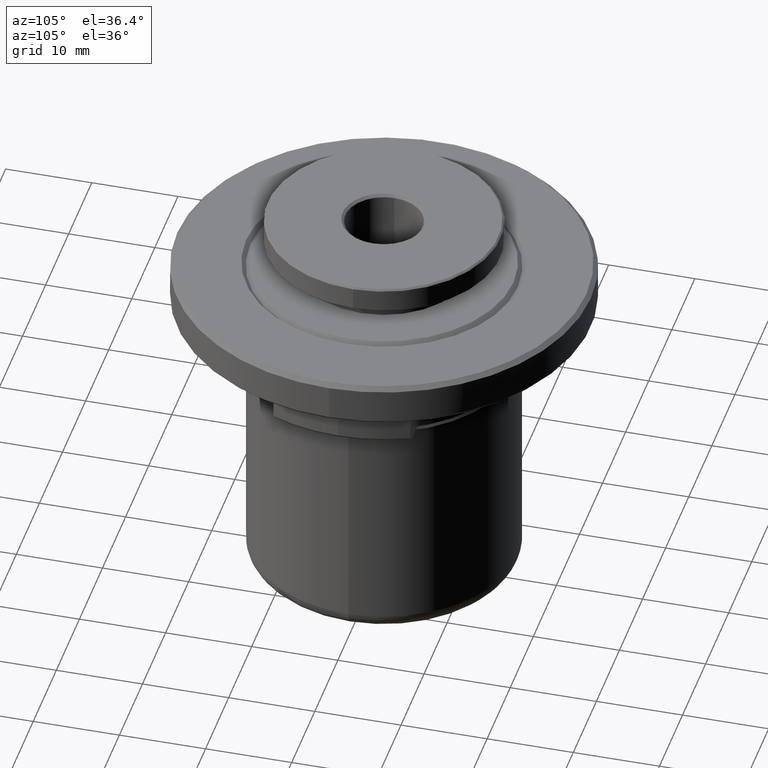
[diagram: clean part render]
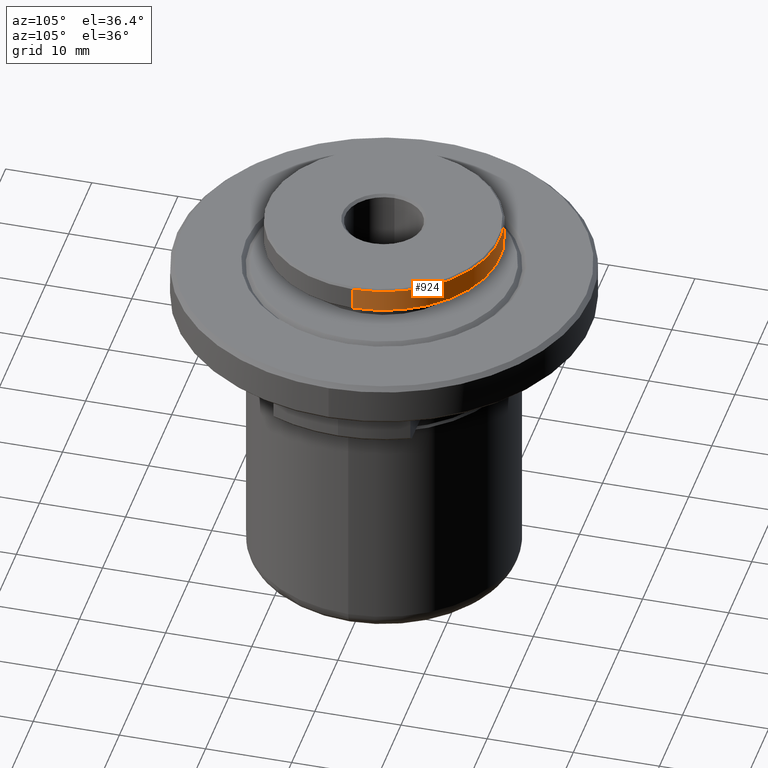
[diagram: same view with one face highlighted and labeled with its STEP entity id]
A machine part, auxiliary view. The second image highlights one B-rep face of the part: STEP entity #924.
In plain terms, the highlighted cylindrical surface (partial cylindrical patch) has radius 13.5 mm, axis along (-0, -0, 1).
Its self-contained STEP definition (entity closure, byte-faithful):
#109 = LINE ( 'NONE', #403, #871 ) ;
#130 = DIRECTION ( 'NONE',  ( 1.000000000000000000, 0.0000000000000000000, 0.0000000000000000000 ) ) ;
#177 = LINE ( 'NONE', #933, #1339 ) ;
#294 = CARTESIAN_POINT ( 'NONE',  ( -13.50000000000000000, 1.653273178848926900E-015, 18.23848561499994500 ) ) ;
#368 = DIRECTION ( 'NONE',  ( 1.000000000000000000, 0.0000000000000000000, 0.0000000000000000000 ) ) ;
#403 = CARTESIAN_POINT ( 'NONE',  ( -13.50000000000000000, 1.653273178848926900E-015, 25.60543566587849200 ) ) ;
#422 = DIRECTION ( 'NONE',  ( -0.0000000000000000000, -0.0000000000000000000, 1.000000000000000000 ) ) ;
#479 = VERTEX_POINT ( 'NONE', #1899 ) ;
#507 = EDGE_CURVE ( 'NONE', #1970, #925, #844, .T. ) ;
#558 = CARTESIAN_POINT ( 'NONE',  ( 0.0000000000000000000, 0.0000000000000000000, 15.63848561500005600 ) ) ;
#802 = EDGE_CURVE ( 'NONE', #925, #1140, #109, .T. ) ;
#844 = CIRCLE ( 'NONE', #1282, 13.50000000000000000 ) ;
#871 = VECTOR ( 'NONE', #422, 1000.000000000000000 ) ;
#907 = EDGE_LOOP ( 'NONE', ( #1592, #1023, #1891, #1757 ) ) ;
#924 = ADVANCED_FACE ( 'NONE', ( #1488 ), #1847, .T. ) ;
#925 = VERTEX_POINT ( 'NONE', #1349 ) ;
#933 = CARTESIAN_POINT ( 'NONE',  ( 13.50000000000000000, 0.0000000000000000000, 25.60543566587849200 ) ) ;
#937 = CARTESIAN_POINT ( 'NONE',  ( 0.0000000000000000000, 0.0000000000000000000, 25.60543566587849200 ) ) ;
#995 = AXIS2_PLACEMENT_3D ( 'NONE', #937, #1457, #1667 ) ;
#1011 = EDGE_CURVE ( 'NONE', #1970, #479, #177, .T. ) ;
#1023 = ORIENTED_EDGE ( 'NONE', *, *, #802, .T. ) ;
#1037 = DIRECTION ( 'NONE',  ( -0.0000000000000000000, -0.0000000000000000000, 1.000000000000000000 ) ) ;
#1140 = VERTEX_POINT ( 'NONE', #294 ) ;
#1282 = AXIS2_PLACEMENT_3D ( 'NONE', #558, #1876, #368 ) ;
#1339 = VECTOR ( 'NONE', #1454, 1000.000000000000000 ) ;
#1349 = CARTESIAN_POINT ( 'NONE',  ( -13.50000000000000000, 1.653273178848926900E-015, 15.63848561500005600 ) ) ;
#1454 = DIRECTION ( 'NONE',  ( -0.0000000000000000000, -0.0000000000000000000, 1.000000000000000000 ) ) ;
#1457 = DIRECTION ( 'NONE',  ( -0.0000000000000000000, -0.0000000000000000000, 1.000000000000000000 ) ) ;
#1488 = FACE_OUTER_BOUND ( 'NONE', #907, .T. ) ;
#1504 = CIRCLE ( 'NONE', #1911, 13.50000000000000000 ) ;
#1592 = ORIENTED_EDGE ( 'NONE', *, *, #507, .T. ) ;
#1667 = DIRECTION ( 'NONE',  ( 1.000000000000000000, 0.0000000000000000000, 0.0000000000000000000 ) ) ;
#1757 = ORIENTED_EDGE ( 'NONE', *, *, #1011, .F. ) ;
#1807 = EDGE_CURVE ( 'NONE', #479, #1140, #1504, .T. ) ;
#1844 = CARTESIAN_POINT ( 'NONE',  ( 13.50000000000000000, 0.0000000000000000000, 15.63848561500005600 ) ) ;
#1847 = CYLINDRICAL_SURFACE ( 'NONE', #995, 13.50000000000000000 ) ;
#1876 = DIRECTION ( 'NONE',  ( -0.0000000000000000000, -0.0000000000000000000, 1.000000000000000000 ) ) ;
#1891 = ORIENTED_EDGE ( 'NONE', *, *, #1807, .F. ) ;
#1899 = CARTESIAN_POINT ( 'NONE',  ( 13.50000000000000000, 0.0000000000000000000, 18.23848561499994500 ) ) ;
#1911 = AXIS2_PLACEMENT_3D ( 'NONE', #1957, #1037, #130 ) ;
#1957 = CARTESIAN_POINT ( 'NONE',  ( 0.0000000000000000000, 0.0000000000000000000, 18.23848561499994500 ) ) ;
#1970 = VERTEX_POINT ( 'NONE', #1844 ) ;